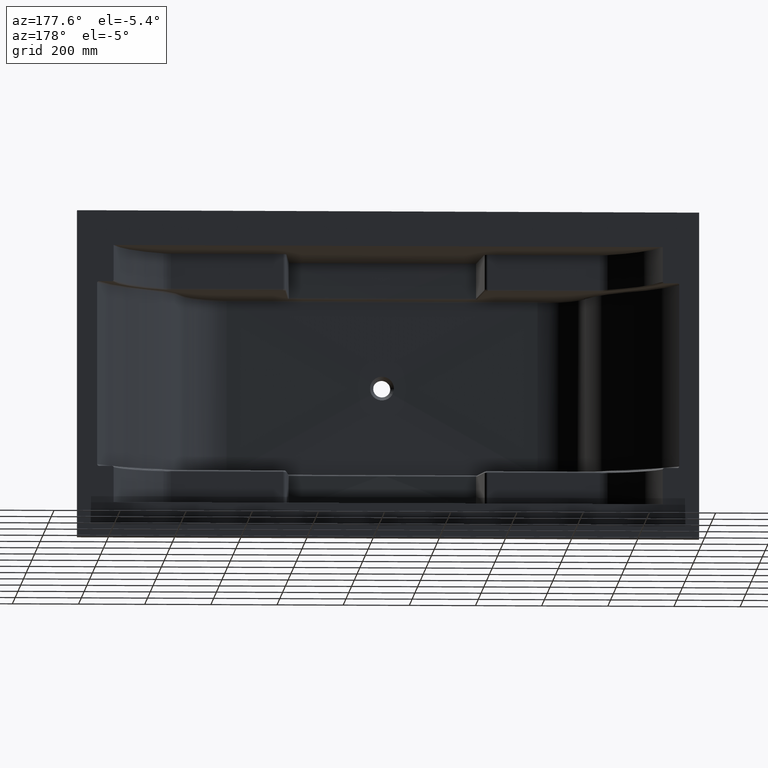
[diagram: clean part render]
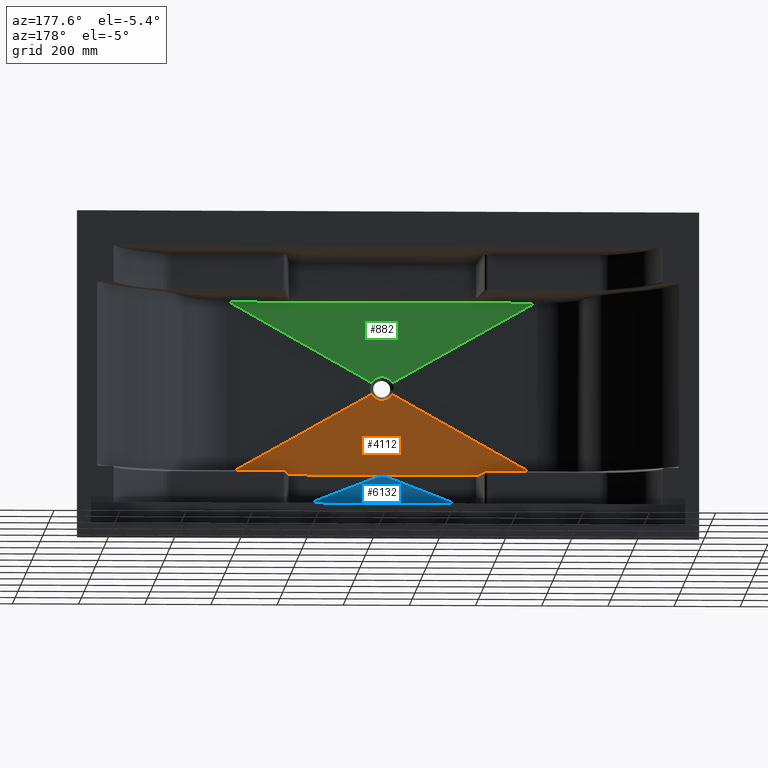
[diagram: same view with three faces highlighted in distinct colors, each labeled with its STEP entity id]
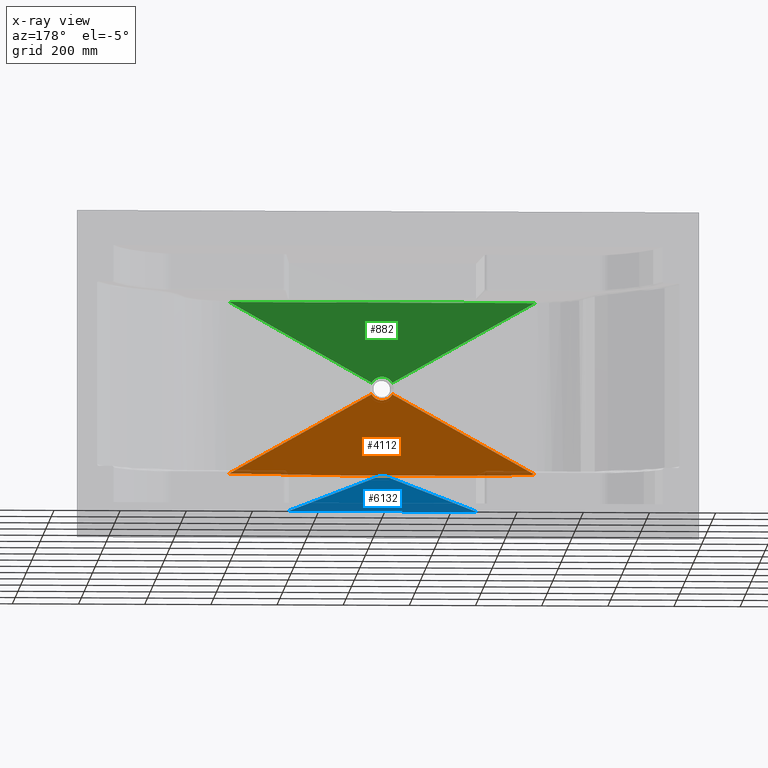
[diagram: x-ray of the same camera — body ghosted, the three highlighted faces saturated]
A machine part, auxiliary view with three faces highlighted in distinct colors.
The next image is the same camera in x-ray (body ghosted, the three faces saturated) — at least one of them is partly hidden behind the body in this view.
Their STEP definitions:

[orange] entity #4112 — the highlighted planar face has unit normal (0, -0.9997, -0.0226).
#302 = CARTESIAN_POINT ( 'NONE',  ( 952.0494807324777200, -434.2306371355668400, -528.9801931791288300 ) ) ;
#328 = CARTESIAN_POINT ( 'NONE',  ( 918.6618801141721600, -434.3411205569399300, -524.1005087351559300 ) ) ;
#472 = CARTESIAN_POINT ( 'NONE',  ( 473.5194303765853800, -429.0449288984244700, -758.0156403195735500 ) ) ;
#715 = CARTESIAN_POINT ( 'NONE',  ( 848.4741429423461300, -428.9999999999997200, -759.9999999999994300 ) ) ;
#726 = VERTEX_POINT ( 'NONE', #715 ) ;
#998 = EDGE_LOOP ( 'NONE', ( #8797, #8942, #3060, #9042, #5127, #7359 ) ) ;
#1032 = VECTOR ( 'NONE', #1304, 1000.000000000000200 ) ;
#1054 = CARTESIAN_POINT ( 'NONE',  ( 946.9744760479219400, -434.1993272180086500, -530.3630478712823300 ) ) ;
#1083 = CARTESIAN_POINT ( 'NONE',  ( 914.6435332896340900, -434.4179712181149900, -520.7062711999203700 ) ) ;
#1116 = CARTESIAN_POINT ( 'NONE',  ( 478.5799790879734100, -429.1095316479315300, -755.1623522163442900 ) ) ;
#1199 = CARTESIAN_POINT ( 'NONE',  ( 1401.420020912023300, -429.1095316479315300, -755.1623522163442900 ) ) ;
#1304 = DIRECTION ( 'NONE',  ( -0.8710262766823256800, 0.01111948438317863200, -0.4911105602570330400 ) ) ;
#1421 = PLANE ( 'NONE',  #5189 ) ;
#1565 = VECTOR ( 'NONE', #9201, 1000.000000000000200 ) ;
#1792 = CARTESIAN_POINT ( 'NONE',  ( 941.7528375050729900, -434.1849636725588700, -530.9974377953115000 ) ) ;
#1826 = CARTESIAN_POINT ( 'NONE',  ( 910.8794994590828100, -434.5146655531878000, -516.4356047342123500 ) ) ;
#1861 = CARTESIAN_POINT ( 'NONE',  ( 1031.525857057653400, -428.9999999999997200, -759.9999999999994300 ) ) ;
#1963 = CARTESIAN_POINT ( 'NONE',  ( 848.4741429423461300, -428.9999999999997200, -759.9999999999994300 ) ) ;
#2051 = EDGE_CURVE ( 'NONE', #726, #3580, #3906, .T. ) ;
#2166 = DIRECTION ( 'NONE',  ( 0.0000000000000000000, 0.02263570821582718000, -0.9997437795323198500 ) ) ;
#2506 = CARTESIAN_POINT ( 'NONE',  ( 966.5831630415510700, -434.4464645930718200, -519.4478138059896500 ) ) ;
#2537 = CARTESIAN_POINT ( 'NONE',  ( 936.4943466847821600, -434.1878484834921300, -530.8700253124340000 ) ) ;
#2555 = VERTEX_POINT ( 'NONE', #1199 ) ;
#2572 = CARTESIAN_POINT ( 'NONE',  ( 908.5391012353958300, -434.5983715051327200, -512.7385918566386600 ) ) ;
#3060 = ORIENTED_EDGE ( 'NONE', *, *, #2051, .F. ) ;
#3216 = CARTESIAN_POINT ( 'NONE',  ( 962.7339255861015800, -434.3652985051317600, -523.0326493566805100 ) ) ;
#3243 = CARTESIAN_POINT ( 'NONE',  ( 931.3095599632532600, -434.2079209995196200, -529.9834891878833800 ) ) ;
#3300 = CARTESIAN_POINT ( 'NONE',  ( 1401.420020912023300, -429.1095316479315300, -755.1623522163442900 ) ) ;
#3566 = CARTESIAN_POINT ( 'NONE',  ( 60.00000000000255100, -428.9999999999997200, -759.9999999999994300 ) ) ;
#3580 = VERTEX_POINT ( 'NONE', #5526 ) ;
#3906 = LINE ( 'NONE', #4854, #7390 ) ;
#3942 = CARTESIAN_POINT ( 'NONE',  ( 958.4067153818097000, -434.2975886121864700, -526.0231696284307600 ) ) ;
#3975 = CARTESIAN_POINT ( 'NONE',  ( 926.3074841355745500, -434.2447592089449100, -528.3564682715986000 ) ) ;
#4112 = ADVANCED_FACE ( 'NONE', ( #7128 ), #1421, .F. ) ;
#4186 = CARTESIAN_POINT ( 'NONE',  ( 1059.775656767218200, -436.5290509374538000, -427.4669169291258900 ) ) ;
#4645 = CARTESIAN_POINT ( 'NONE',  ( 953.6925158644294200, -434.2447592089449700, -528.3564682715982600 ) ) ;
#4680 = CARTESIAN_POINT ( 'NONE',  ( 921.5932846181940500, -434.2975886121863000, -526.0231696284311100 ) ) ;
#4775 = EDGE_CURVE ( 'NONE', #5592, #6871, #6669, .T. ) ;
#4833 = VERTEX_POINT ( 'NONE', #6330 ) ;
#4849 =( BOUNDED_CURVE ( )  B_SPLINE_CURVE ( 3, ( #1861, #6068, #7498, #3300 ),
 .UNSPECIFIED., .F., .F. ) 
 B_SPLINE_CURVE_WITH_KNOTS ( ( 4, 4 ),
 ( 4.768802153393792800, 6.305830293113238800 ),
 .UNSPECIFIED. ) 
 CURVE ( )  GEOMETRIC_REPRESENTATION_ITEM ( )  RATIONAL_B_SPLINE_CURVE ( ( 1.000000000000000000, 0.8126295233293368000, 0.8126295233293368000, 1.000000000000000000 ) ) 
 REPRESENTATION_ITEM ( '' )  );
#4854 = CARTESIAN_POINT ( 'NONE',  ( 60.00000000000255100, -428.9999999999997200, -759.9999999999994300 ) ) ;
#5031 = CARTESIAN_POINT ( 'NONE',  ( 820.2243432327862800, -436.5290509374538600, -427.4669169291239500 ) ) ;
#5110 = EDGE_CURVE ( 'NONE', #3580, #2555, #4849, .T. ) ;
#5127 = ORIENTED_EDGE ( 'NONE', *, *, #4775, .F. ) ;
#5189 = AXIS2_PLACEMENT_3D ( 'NONE', #3566, #6348, #2166 ) ;
#5294 = CARTESIAN_POINT ( 'NONE',  ( 970.3764135868572100, -434.5554098069247300, -514.6360668608214200 ) ) ;
#5322 = CARTESIAN_POINT ( 'NONE',  ( 948.6904400367506000, -434.2079209995196200, -529.9834891878831500 ) ) ;
#5355 = CARTESIAN_POINT ( 'NONE',  ( 917.2660744139020600, -434.3652985051317000, -523.0326493566810800 ) ) ;
#5477 = CARTESIAN_POINT ( 'NONE',  ( 478.5799790879734100, -429.1095316479315300, -755.1623522163442900 ) ) ;
#5526 = CARTESIAN_POINT ( 'NONE',  ( 1031.525857057653400, -428.9999999999997200, -759.9999999999994300 ) ) ;
#5592 = VERTEX_POINT ( 'NONE', #5597 ) ;
#5597 = CARTESIAN_POINT ( 'NONE',  ( 908.5391012353958300, -434.5983715051327200, -512.7385918566386600 ) ) ;
#5971 = CARTESIAN_POINT ( 'NONE',  ( 971.4608987646075800, -434.5983715051327200, -512.7385918566379800 ) ) ;
#6008 = CARTESIAN_POINT ( 'NONE',  ( 943.5056533152217100, -434.1878484834920800, -530.8700253124340000 ) ) ;
#6034 = CARTESIAN_POINT ( 'NONE',  ( 913.4168369584525600, -434.4464645930718200, -519.4478138059902200 ) ) ;
#6068 = CARTESIAN_POINT ( 'NONE',  ( 1254.753305133959400, -428.9999999999998300, -759.9999999999992000 ) ) ;
#6170 = CARTESIAN_POINT ( 'NONE',  ( 625.2466948660346600, -428.9999999999997200, -759.9999999999994300 ) ) ;
#6330 = CARTESIAN_POINT ( 'NONE',  ( 971.4608987646075800, -434.5983715051327200, -512.7385918566379800 ) ) ;
#6348 = DIRECTION ( 'NONE',  ( 0.0000000000000000000, -0.9997437795323199600, -0.02263570821582718300 ) ) ;
#6669 = LINE ( 'NONE', #4186, #1032 ) ;
#6678 = CARTESIAN_POINT ( 'NONE',  ( 969.1205005413368100, -434.5146655531989400, -516.4356047337175800 ) ) ;
#6708 = CARTESIAN_POINT ( 'NONE',  ( 938.2471624949308800, -434.1849636725589800, -530.9974377953115000 ) ) ;
#6737 = CARTESIAN_POINT ( 'NONE',  ( 909.6235864138885700, -434.5554098069006800, -514.6360668618858700 ) ) ;
#6851 = EDGE_CURVE ( 'NONE', #4833, #5592, #6998, .T. ) ;
#6871 = VERTEX_POINT ( 'NONE', #1116 ) ;
#6998 = B_SPLINE_CURVE_WITH_KNOTS ( 'NONE', 3,
 ( #5971, #5294, #6678, #2506, #7404, #3216, #8089, #3942, #8795, #4645, #302, #5322, #1054, #6008, #1792, #6708, #2537, #7438, #3243, #8120, #3975, #8826, #4680, #328, #5355, #1083, #6034, #1826, #6737, #2572 ),
 .UNSPECIFIED., .F., .F.,
 ( 4, 2, 2, 2, 2, 2, 2, 2, 2, 2, 2, 2, 2, 2, 4 ),
 ( 0.0000000000000000000, 0.08602813129796996200, 0.1550234427504272900, 0.2240187542028846400, 0.2930140656553419400, 0.3620093771077992900, 0.4310046885602566400, 0.5000000000127139400, 0.5689953114651712400, 0.6379906229176286500, 0.7069859343700859400, 0.7759812458225432400, 0.8449765572750006500, 0.9139718687274579500, 1.000000000000000000 ),
 .UNSPECIFIED. ) ;
#7128 = FACE_OUTER_BOUND ( 'NONE', #998, .T. ) ;
#7359 = ORIENTED_EDGE ( 'NONE', *, *, #6851, .F. ) ;
#7390 = VECTOR ( 'NONE', #8327, 1000.000000000000000 ) ;
#7404 = CARTESIAN_POINT ( 'NONE',  ( 965.3564667103695500, -434.4179712181149300, -520.7062711999199100 ) ) ;
#7405 =( BOUNDED_CURVE ( )  B_SPLINE_CURVE ( 3, ( #5477, #472, #6170, #1963 ),
 .UNSPECIFIED., .F., .F. ) 
 B_SPLINE_CURVE_WITH_KNOTS ( ( 4, 4 ),
 ( 3.118947667656141000, 4.655975807375591000 ),
 .UNSPECIFIED. ) 
 CURVE ( )  GEOMETRIC_REPRESENTATION_ITEM ( )  RATIONAL_B_SPLINE_CURVE ( ( 1.000000000000000000, 0.8126295233293359100, 0.8126295233293359100, 1.000000000000000000 ) ) 
 REPRESENTATION_ITEM ( '' )  );
#7438 = CARTESIAN_POINT ( 'NONE',  ( 933.0255239520819300, -434.1993272180085900, -530.3630478712825600 ) ) ;
#7498 = CARTESIAN_POINT ( 'NONE',  ( 1406.480569623405500, -429.0449288984244200, -758.0156403195735500 ) ) ;
#8089 = CARTESIAN_POINT ( 'NONE',  ( 961.3381198858317000, -434.3411205569398700, -524.1005087351553600 ) ) ;
#8120 = CARTESIAN_POINT ( 'NONE',  ( 927.9505192675259200, -434.2306371355668400, -528.9801931791291700 ) ) ;
#8238 = EDGE_CURVE ( 'NONE', #6871, #726, #7405, .T. ) ;
#8327 = DIRECTION ( 'NONE',  ( 1.000000000000000000, -0.0000000000000000000, -0.0000000000000000000 ) ) ;
#8488 = EDGE_CURVE ( 'NONE', #2555, #4833, #8828, .T. ) ;
#8795 = CARTESIAN_POINT ( 'NONE',  ( 956.8711528601375000, -434.2782351544210500, -526.8779473464004500 ) ) ;
#8797 = ORIENTED_EDGE ( 'NONE', *, *, #8488, .F. ) ;
#8826 = CARTESIAN_POINT ( 'NONE',  ( 923.1288471398662500, -434.2782351544211100, -526.8779473464007900 ) ) ;
#8828 = LINE ( 'NONE', #5031, #1565 ) ;
#8942 = ORIENTED_EDGE ( 'NONE', *, *, #5110, .F. ) ;
#9042 = ORIENTED_EDGE ( 'NONE', *, *, #8238, .F. ) ;
#9201 = DIRECTION ( 'NONE',  ( -0.8710262766823218000, -0.01111948438317878800, 0.4911105602570399200 ) ) ;

[blue] entity #6132 — the highlighted planar face has unit normal (0, -0.9995, -0.0328).
#117 = DIRECTION ( 'NONE',  ( 0.0000000000000000000, 0.03277122531403690900, -0.9994628791463025000 ) ) ;
#312 = CARTESIAN_POINT ( 'NONE',  ( 657.1562073688821800, -396.3863763261470600, -871.1018116106027900 ) ) ;
#392 = ORIENTED_EDGE ( 'NONE', *, *, #1867, .F. ) ;
#434 = CARTESIAN_POINT ( 'NONE',  ( 952.2188620338589500, -399.8438489483672800, -765.6551733338947100 ) ) ;
#498 = CARTESIAN_POINT ( 'NONE',  ( 927.5704362435619700, -399.8384728649727400, -765.8191341176780000 ) ) ;
#563 = CARTESIAN_POINT ( 'NONE',  ( 963.8695282624030400, -399.6924307648966400, -770.2731530449499400 ) ) ;
#915 = CARTESIAN_POINT ( 'NONE',  ( 952.2188620338589500, -399.8438489483672800, -765.6551733338947100 ) ) ;
#1166 =( BOUNDED_CURVE ( )  B_SPLINE_CURVE ( 3, ( #4765, #4067, #6070, #434 ),
 .UNSPECIFIED., .F., .T. ) 
 B_SPLINE_CURVE_WITH_KNOTS ( ( 4, 4 ),
 ( 3.108807394508074800, 3.141587240981976500 ),
 .UNSPECIFIED. ) 
 CURVE ( )  GEOMETRIC_REPRESENTATION_ITEM ( )  RATIONAL_B_SPLINE_CURVE ( ( 1.000000000000000000, 0.9999104588099069200, 0.9999104588099069200, 1.000000000000000000 ) ) 
 REPRESENTATION_ITEM ( '' )  );
#1448 = VERTEX_POINT ( 'NONE', #7569 ) ;
#1687 = CARTESIAN_POINT ( 'NONE',  ( 927.7811611690891600, -399.8420584753129700, -765.7097795116245600 ) ) ;
#1867 = EDGE_CURVE ( 'NONE', #4395, #6798, #1166, .T. ) ;
#1899 = VERTEX_POINT ( 'NONE', #498 ) ;
#1975 = ORIENTED_EDGE ( 'NONE', *, *, #5363, .F. ) ;
#2425 = CARTESIAN_POINT ( 'NONE',  ( 927.7811379661460500, -399.8438489483672800, -765.6551733338947100 ) ) ;
#2491 = ORIENTED_EDGE ( 'NONE', *, *, #5461, .F. ) ;
#2703 = DIRECTION ( 'NONE',  ( -1.000000000000000000, 0.0000000000000000000, 0.0000000000000000000 ) ) ;
#2769 = DIRECTION ( 'NONE',  ( -0.9317971306876990900, -0.01189528251941784000, 0.3627845221284315400 ) ) ;
#2775 = ORIENTED_EDGE ( 'NONE', *, *, #5728, .F. ) ;
#2823 = EDGE_CURVE ( 'NONE', #6798, #6259, #7147, .T. ) ;
#2836 = VECTOR ( 'NONE', #4570, 1000.000000000000000 ) ;
#2943 = VECTOR ( 'NONE', #2769, 999.9999999999998900 ) ;
#3026 = CARTESIAN_POINT ( 'NONE',  ( 60.00000000000255100, -396.3863763261470600, -871.1018116106025700 ) ) ;
#3132 = CARTESIAN_POINT ( 'NONE',  ( 927.7109209721713800, -399.8402662870401500, -765.7644380004052200 ) ) ;
#3227 = CARTESIAN_POINT ( 'NONE',  ( 927.7811379661460500, -399.8438489483672800, -765.6551733338947100 ) ) ;
#3456 = AXIS2_PLACEMENT_3D ( 'NONE', #3026, #6498, #117 ) ;
#4067 = CARTESIAN_POINT ( 'NONE',  ( 952.2890790278343000, -399.8402662870401500, -765.7644380004051100 ) ) ;
#4395 = VERTEX_POINT ( 'NONE', #8702 ) ;
#4516 =( BOUNDED_CURVE ( )  B_SPLINE_CURVE ( 3, ( #2425, #1687, #3132, #8019 ),
 .UNSPECIFIED., .F., .F. ) 
 B_SPLINE_CURVE_WITH_KNOTS ( ( 4, 4 ),
 ( 5.412607816708464300E-006, 0.03278525908172322300 ),
 .UNSPECIFIED. ) 
 CURVE ( )  GEOMETRIC_REPRESENTATION_ITEM ( )  RATIONAL_B_SPLINE_CURVE ( ( 1.000000000000000000, 0.9999104588099069200, 0.9999104588099069200, 1.000000000000000000 ) ) 
 REPRESENTATION_ITEM ( '' )  );
#4570 = DIRECTION ( 'NONE',  ( 1.000000000000000000, -0.0000000000000000000, -0.0000000000000000000 ) ) ;
#4737 = LINE ( 'NONE', #6567, #2836 ) ;
#4765 = CARTESIAN_POINT ( 'NONE',  ( 952.4295637564430300, -399.8384728649727400, -765.8191341176780000 ) ) ;
#4835 = LINE ( 'NONE', #563, #2943 ) ;
#4877 = DIRECTION ( 'NONE',  ( -0.9317971306877027600, 0.01189528251941752100, -0.3627845221284217700 ) ) ;
#5106 = LINE ( 'NONE', #9033, #8518 ) ;
#5363 = EDGE_CURVE ( 'NONE', #6259, #1899, #4516, .T. ) ;
#5461 = EDGE_CURVE ( 'NONE', #1899, #6286, #5106, .T. ) ;
#5710 = VECTOR ( 'NONE', #2703, 1000.000000000000000 ) ;
#5728 = EDGE_CURVE ( 'NONE', #6286, #1448, #4737, .T. ) ;
#6070 = CARTESIAN_POINT ( 'NONE',  ( 952.2188388309166400, -399.8420584753129700, -765.7097795116245600 ) ) ;
#6132 = ADVANCED_FACE ( 'NONE', ( #7656 ), #8618, .F. ) ;
#6259 = VERTEX_POINT ( 'NONE', #3227 ) ;
#6286 = VERTEX_POINT ( 'NONE', #312 ) ;
#6498 = DIRECTION ( 'NONE',  ( 0.0000000000000000000, -0.9994628791463026100, -0.03277122531403691600 ) ) ;
#6501 = ORIENTED_EDGE ( 'NONE', *, *, #2823, .F. ) ;
#6567 = CARTESIAN_POINT ( 'NONE',  ( 60.00000000000255100, -396.3863763261470600, -871.1018116106025700 ) ) ;
#6742 = EDGE_CURVE ( 'NONE', #1448, #4395, #4835, .T. ) ;
#6798 = VERTEX_POINT ( 'NONE', #915 ) ;
#6893 = CARTESIAN_POINT ( 'NONE',  ( 60.00000000000255100, -399.8438489483672800, -765.6551733338947100 ) ) ;
#7147 = LINE ( 'NONE', #6893, #5710 ) ;
#7237 = ORIENTED_EDGE ( 'NONE', *, *, #6742, .F. ) ;
#7569 = CARTESIAN_POINT ( 'NONE',  ( 1222.843792631104400, -396.3863763261471100, -871.1018116106025700 ) ) ;
#7656 = FACE_OUTER_BOUND ( 'NONE', #8390, .T. ) ;
#8019 = CARTESIAN_POINT ( 'NONE',  ( 927.5704362435619700, -399.8384728649727400, -765.8191341176780000 ) ) ;
#8390 = EDGE_LOOP ( 'NONE', ( #392, #7237, #2775, #2491, #1975, #6501 ) ) ;
#8518 = VECTOR ( 'NONE', #4877, 1000.000000000000100 ) ;
#8618 = PLANE ( 'NONE',  #3456 ) ;
#8702 = CARTESIAN_POINT ( 'NONE',  ( 952.4295637564430300, -399.8384728649727400, -765.8191341176780000 ) ) ;
#9033 = CARTESIAN_POINT ( 'NONE',  ( 916.1304717375956000, -399.6924307648965900, -770.2731530449525500 ) ) ;

[green] entity #882 — the highlighted planar face has unit normal (0, -0.9997, 0.0226).
#201 = CARTESIAN_POINT ( 'NONE',  ( 1401.520481918804800, -429.1078219759810400, -234.7621372724986200 ) ) ;
#303 = EDGE_CURVE ( 'NONE', #6652, #7505, #2023, .T. ) ;
#406 = CARTESIAN_POINT ( 'NONE',  ( 933.0255239520819300, -434.1993272180087000, -459.6369521287168100 ) ) ;
#442 = CARTESIAN_POINT ( 'NONE',  ( 965.3564667103690900, -434.4179712181149900, -469.2937288000790100 ) ) ;
#548 = CARTESIAN_POINT ( 'NONE',  ( 60.00000000000255100, -429.1069678221434700, -234.7244121446756500 ) ) ;
#575 = CARTESIAN_POINT ( 'NONE',  ( 60.00000000000255100, -428.9999999999998300, -229.9999999999993700 ) ) ;
#601 = CARTESIAN_POINT ( 'NONE',  ( 908.5391012353962900, -434.5983715051327200, -477.2614081433600300 ) ) ;
#633 = VERTEX_POINT ( 'NONE', #6875 ) ;
#635 = EDGE_CURVE ( 'NONE', #2619, #6652, #2125, .T. ) ;
#882 = ADVANCED_FACE ( 'NONE', ( #3932 ), #1743, .F. ) ;
#935 = DIRECTION ( 'NONE',  ( 0.0000000000000000000, -0.9997437795323199600, 0.02263570821582676000 ) ) ;
#951 = VERTEX_POINT ( 'NONE', #5593 ) ;
#1159 = CARTESIAN_POINT ( 'NONE',  ( 938.2471624949308800, -434.1849636725589800, -459.0025622046878200 ) ) ;
#1192 = CARTESIAN_POINT ( 'NONE',  ( 969.1205005409201500, -434.5146655531877400, -473.5643952657869700 ) ) ;
#1240 = CARTESIAN_POINT ( 'NONE',  ( 1059.775656767220200, -433.4709490625461400, -427.4669169291219600 ) ) ;
#1266 = CARTESIAN_POINT ( 'NONE',  ( 1401.420020912014900, -429.1095316479316500, -234.8376477836544600 ) ) ;
#1289 = EDGE_CURVE ( 'NONE', #951, #2619, #4581, .T. ) ;
#1404 = B_SPLINE_CURVE_WITH_KNOTS ( 'NONE', 3,
 ( #4016, #8160, #6078, #1874, #6782, #2613, #7504, #3313, #8186, #4041, #8902, #4741, #406, #5426, #1159, #6114, #1902, #6816, #2638, #7532, #3340, #8218, #4075, #8929, #4771, #442, #5452, #1192, #6141, #1938 ),
 .UNSPECIFIED., .F., .F.,
 ( 4, 2, 2, 2, 2, 2, 2, 2, 2, 2, 2, 2, 2, 2, 4 ),
 ( 0.0000000000000000000, 0.08602813129796803300, 0.1550234427504252600, 0.2240187542028825000, 0.2930140656553397200, 0.3620093771077969600, 0.4310046885602542000, 0.5000000000127118300, 0.5689953114651694600, 0.6379906229176267600, 0.7069859343700839500, 0.7759812458225412400, 0.8449765572749984300, 0.9139718687274556200, 1.000000000000000000 ),
 .UNSPECIFIED. ) ;
#1597 = LINE ( 'NONE', #5568, #1836 ) ;
#1677 = DIRECTION ( 'NONE',  ( 0.8710262766823178000, 0.01111948438317874100, 0.4911105602570469700 ) ) ;
#1743 = PLANE ( 'NONE',  #4091 ) ;
#1836 = VECTOR ( 'NONE', #8353, 1000.000000000000100 ) ;
#1844 = CARTESIAN_POINT ( 'NONE',  ( 478.4795316677687500, -429.1069678221434700, -234.7244121446756500 ) ) ;
#1874 = CARTESIAN_POINT ( 'NONE',  ( 913.4168369584527900, -434.4464645930718200, -470.5521861940088700 ) ) ;
#1902 = CARTESIAN_POINT ( 'NONE',  ( 943.5056533152217100, -434.1878484834920800, -459.1299746875654400 ) ) ;
#1938 = CARTESIAN_POINT ( 'NONE',  ( 971.4608987646071200, -434.5983715051327200, -477.2614081433608200 ) ) ;
#1958 = CARTESIAN_POINT ( 'NONE',  ( 1401.520468332221500, -429.1069678221434700, -234.7244121446756500 ) ) ;
#2023 = LINE ( 'NONE', #548, #7630 ) ;
#2125 =( BOUNDED_CURVE ( )  B_SPLINE_CURVE ( 3, ( #7082, #8155, #201, #1958 ),
 .UNSPECIFIED., .F., .F. ) 
 B_SPLINE_CURVE_WITH_KNOTS ( ( 4, 4 ),
 ( 3.118947667656141000, 3.141588061843509000 ),
 .UNSPECIFIED. ) 
 CURVE ( )  GEOMETRIC_REPRESENTATION_ITEM ( )  RATIONAL_B_SPLINE_CURVE ( ( 1.000000000000000000, 0.9999572848354074700, 0.9999572848354074700, 1.000000000000000000 ) ) 
 REPRESENTATION_ITEM ( '' )  );
#2613 = CARTESIAN_POINT ( 'NONE',  ( 917.2660744139022900, -434.3652985051317600, -466.9673506433181800 ) ) ;
#2619 = VERTEX_POINT ( 'NONE', #1266 ) ;
#2638 = CARTESIAN_POINT ( 'NONE',  ( 948.6904400367506000, -434.2079209995196700, -460.0165108121161700 ) ) ;
#2794 = CARTESIAN_POINT ( 'NONE',  ( 478.5799790879817100, -429.1095316479316500, -234.8376477836544600 ) ) ;
#3313 = CARTESIAN_POINT ( 'NONE',  ( 921.5932846181942800, -434.2975886121864700, -463.9768303715681000 ) ) ;
#3340 = CARTESIAN_POINT ( 'NONE',  ( 953.6925158644292000, -434.2447592089449100, -461.6435317284010000 ) ) ;
#3540 = DIRECTION ( 'NONE',  ( -1.000000000000000000, -0.0000000000000000000, -0.0000000000000000000 ) ) ;
#3932 = FACE_OUTER_BOUND ( 'NONE', #6622, .T. ) ;
#4016 = CARTESIAN_POINT ( 'NONE',  ( 908.5391012353962900, -434.5983715051327200, -477.2614081433600300 ) ) ;
#4035 = CARTESIAN_POINT ( 'NONE',  ( 1401.520468332221500, -429.1069678221434700, -234.7244121446756500 ) ) ;
#4041 = CARTESIAN_POINT ( 'NONE',  ( 926.3074841355745500, -434.2447592089449700, -461.6435317284007700 ) ) ;
#4063 = VERTEX_POINT ( 'NONE', #601 ) ;
#4075 = CARTESIAN_POINT ( 'NONE',  ( 958.4067153818097000, -434.2975886121863600, -463.9768303715685500 ) ) ;
#4086 = ORIENTED_EDGE ( 'NONE', *, *, #635, .F. ) ;
#4091 = AXIS2_PLACEMENT_3D ( 'NONE', #575, #935, #8285 ) ;
#4221 = CARTESIAN_POINT ( 'NONE',  ( 478.4795180811862000, -429.1078219759810400, -234.7621372724986200 ) ) ;
#4581 = LINE ( 'NONE', #1240, #6835 ) ;
#4741 = CARTESIAN_POINT ( 'NONE',  ( 931.3095599632532600, -434.2079209995196200, -460.0165108121159400 ) ) ;
#4771 = CARTESIAN_POINT ( 'NONE',  ( 962.7339255861013500, -434.3652985051317000, -466.9673506433186400 ) ) ;
#5309 = EDGE_CURVE ( 'NONE', #7505, #633, #8662, .T. ) ;
#5426 = CARTESIAN_POINT ( 'NONE',  ( 936.4943466847821600, -434.1878484834920200, -459.1299746875653200 ) ) ;
#5452 = CARTESIAN_POINT ( 'NONE',  ( 966.5831630415506200, -434.4464645930718200, -470.5521861940092700 ) ) ;
#5521 = EDGE_CURVE ( 'NONE', #633, #4063, #1597, .T. ) ;
#5568 = CARTESIAN_POINT ( 'NONE',  ( 820.2243432327862800, -433.4709490625462000, -427.4669169291239500 ) ) ;
#5593 = CARTESIAN_POINT ( 'NONE',  ( 971.4608987646071200, -434.5983715051327200, -477.2614081433608200 ) ) ;
#5654 = ORIENTED_EDGE ( 'NONE', *, *, #5521, .F. ) ;
#6078 = CARTESIAN_POINT ( 'NONE',  ( 910.8794994586671700, -434.5146655531989400, -473.5643952662806600 ) ) ;
#6114 = CARTESIAN_POINT ( 'NONE',  ( 941.7528375050729900, -434.1849636725589800, -459.0025622046878200 ) ) ;
#6141 = CARTESIAN_POINT ( 'NONE',  ( 970.3764135861145000, -434.5554098069006800, -475.3639331381135100 ) ) ;
#6254 = ORIENTED_EDGE ( 'NONE', *, *, #303, .F. ) ;
#6275 = CARTESIAN_POINT ( 'NONE',  ( 478.4795316677687500, -429.1069678221434700, -234.7244121446756500 ) ) ;
#6317 = EDGE_CURVE ( 'NONE', #4063, #951, #1404, .T. ) ;
#6622 = EDGE_LOOP ( 'NONE', ( #5654, #6651, #6254, #4086, #8666, #8163 ) ) ;
#6651 = ORIENTED_EDGE ( 'NONE', *, *, #5309, .F. ) ;
#6652 = VERTEX_POINT ( 'NONE', #4035 ) ;
#6782 = CARTESIAN_POINT ( 'NONE',  ( 914.6435332896343200, -434.4179712181149300, -469.2937288000785000 ) ) ;
#6816 = CARTESIAN_POINT ( 'NONE',  ( 946.9744760479217100, -434.1993272180086500, -459.6369521287169300 ) ) ;
#6835 = VECTOR ( 'NONE', #1677, 1000.000000000000100 ) ;
#6875 = CARTESIAN_POINT ( 'NONE',  ( 478.5799790879817100, -429.1095316479316500, -234.8376477836544600 ) ) ;
#6985 = CARTESIAN_POINT ( 'NONE',  ( 478.5130019848601300, -429.1086766210833600, -234.7998840978534100 ) ) ;
#7082 = CARTESIAN_POINT ( 'NONE',  ( 1401.420020912014900, -429.1095316479316500, -234.8376477836544600 ) ) ;
#7504 = CARTESIAN_POINT ( 'NONE',  ( 918.6618801141723900, -434.3411205569398700, -465.8994912648432200 ) ) ;
#7505 = VERTEX_POINT ( 'NONE', #1844 ) ;
#7532 = CARTESIAN_POINT ( 'NONE',  ( 952.0494807324772600, -434.2306371355668900, -461.0198068208703100 ) ) ;
#7630 = VECTOR ( 'NONE', #3540, 1000.000000000000000 ) ;
#8155 = CARTESIAN_POINT ( 'NONE',  ( 1401.486998015130700, -429.1086766210833600, -234.7998840978534100 ) ) ;
#8160 = CARTESIAN_POINT ( 'NONE',  ( 909.6235864131465400, -434.5554098069247300, -475.3639331391767700 ) ) ;
#8163 = ORIENTED_EDGE ( 'NONE', *, *, #6317, .F. ) ;
#8186 = CARTESIAN_POINT ( 'NONE',  ( 923.1288471398664800, -434.2782351544210500, -463.1220526535983000 ) ) ;
#8218 = CARTESIAN_POINT ( 'NONE',  ( 956.8711528601372700, -434.2782351544211100, -463.1220526535987600 ) ) ;
#8285 = DIRECTION ( 'NONE',  ( 0.0000000000000000000, -0.02263570821582675700, -0.9997437795323198500 ) ) ;
#8353 = DIRECTION ( 'NONE',  ( 0.8710262766823218000, -0.01111948438317858500, -0.4911105602570400300 ) ) ;
#8662 =( BOUNDED_CURVE ( )  B_SPLINE_CURVE ( 3, ( #6275, #4221, #6985, #2794 ),
 .UNSPECIFIED., .F., .F. ) 
 B_SPLINE_CURVE_WITH_KNOTS ( ( 4, 4 ),
 ( 4.591746284452265000E-006, 0.02264498593365190200 ),
 .UNSPECIFIED. ) 
 CURVE ( )  GEOMETRIC_REPRESENTATION_ITEM ( )  RATIONAL_B_SPLINE_CURVE ( ( 1.000000000000000000, 0.9999572848354074700, 0.9999572848354074700, 1.000000000000000000 ) ) 
 REPRESENTATION_ITEM ( '' )  );
#8666 = ORIENTED_EDGE ( 'NONE', *, *, #1289, .F. ) ;
#8902 = CARTESIAN_POINT ( 'NONE',  ( 927.9505192675261500, -434.2306371355668400, -461.0198068208700900 ) ) ;
#8929 = CARTESIAN_POINT ( 'NONE',  ( 961.3381198858312500, -434.3411205569399800, -465.8994912648437300 ) ) ;